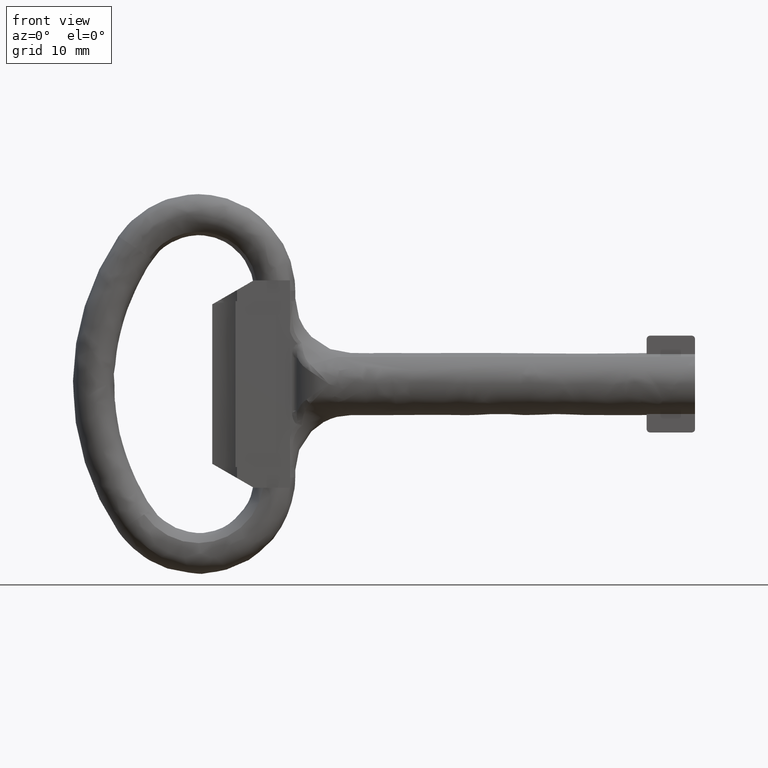
[diagram: clean part render]
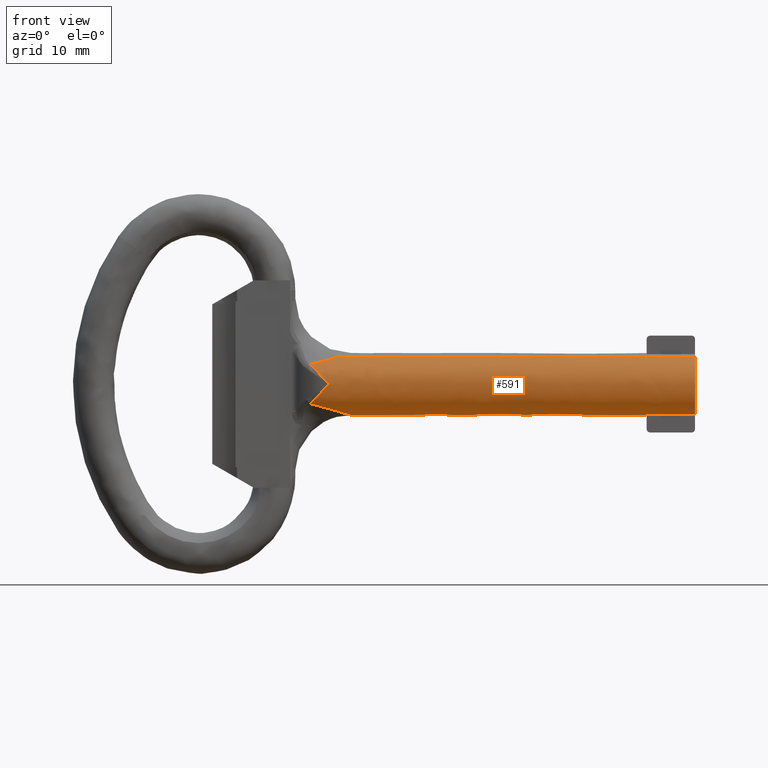
[diagram: same view with one face highlighted and labeled with its STEP entity id]
A machine part, front view. The second image highlights one B-rep face of the part: STEP entity #591.
In plain terms, the highlighted face is a freeform B-spline surface patch.
Its self-contained STEP definition (entity closure, byte-faithful):
#230=CARTESIAN_POINT('',(-57.048638486728692,-2.210718339266490,3.919530812540482));
#231=CARTESIAN_POINT('',(-57.048638486728684,-5.496579655738914,2.066218714732629));
#232=CARTESIAN_POINT('',(-57.048638486728677,-4.245221617824202,-1.492679061815200));
#233=CARTESIAN_POINT('',(-57.048638486728692,-2.752542556009002,-5.737900679639402));
#234=CARTESIAN_POINT('',(-57.048638486728677,1.492679061815200,-4.245221617824202));
#235=CARTESIAN_POINT('',(-57.048638486728692,5.737900679639402,-2.752542556009002));
#236=CARTESIAN_POINT('',(-57.048638486728677,4.245221617824202,1.492679061815200));
#237=CARTESIAN_POINT('',(1.426215962168222,-2.210718339266490,3.919530812540482));
#238=CARTESIAN_POINT('',(1.426215962168221,-5.496579655738914,2.066218714732629));
#239=CARTESIAN_POINT('',(1.426215962168222,-4.245221617824202,-1.492679061815200));
#240=CARTESIAN_POINT('',(1.426215962168222,-2.752542556009002,-5.737900679639402));
#241=CARTESIAN_POINT('',(1.426215962168222,1.492679061815200,-4.245221617824202));
#242=CARTESIAN_POINT('',(1.426215962168222,5.737900679639402,-2.752542556009002));
#243=CARTESIAN_POINT('',(1.426215962168222,4.245221617824202,1.492679061815200));
#251=(BOUNDED_SURFACE()B_SPLINE_SURFACE(2,1,((#230,#237),(#231,#238),(#232,#239),(#233,#240),(#234,#241),(#235,#242),(#236,#243)),.UNSPECIFIED.,.F.,.F.,.U.)B_SPLINE_SURFACE_WITH_KNOTS((3,2,2,3),(2,2),(0.0,6.561142401276319,14.016986039090320,21.472829676904318),(0.0,58.474854448896913),.UNSPECIFIED.)GEOMETRIC_REPRESENTATION_ITEM()RATIONAL_B_SPLINE_SURFACE(((0.938140952186599,0.938140952186599),(0.742253967444162,0.742253967444162),(1.0,1.0),(0.707106781186548,0.707106781186548),(1.0,1.0),(0.707106781186548,0.707106781186548),(1.0,1.0)))REPRESENTATION_ITEM('')SURFACE());
#252=CARTESIAN_POINT('',(-51.716841464869127,-2.210718864236529,3.919531743995806));
#253=VERTEX_POINT('',#252);
#254=CARTESIAN_POINT('',(-55.657208279735300,-3.492295393360170,2.837934152079430));
#255=VERTEX_POINT('',#254);
#256=CARTESIAN_POINT('',(-51.716841464869127,-2.210718864236529,3.919531743995806));
#257=CARTESIAN_POINT('',(-51.758727016348267,-2.233126748140558,3.906892245564237));
#258=CARTESIAN_POINT('',(-51.800836128852957,-2.255158331591422,3.894211164004134));
#259=CARTESIAN_POINT('',(-51.975353216815208,-2.344561612454913,3.841768329171790));
#260=CARTESIAN_POINT('',(-52.109706812485882,-2.408889124556252,3.801660298992484));
#261=CARTESIAN_POINT('',(-52.517428694294367,-2.592802140399997,3.680880763554606));
#262=CARTESIAN_POINT('',(-52.793234394122720,-2.702495054317139,3.600405755350944));
#263=CARTESIAN_POINT('',(-53.351056397471922,-2.902941730502905,3.440833016621393));
#264=CARTESIAN_POINT('',(-53.633094206719370,-2.993617517763209,3.361726073217614));
#265=CARTESIAN_POINT('',(-54.202563328610957,-3.159741922471765,3.206084902977868));
#266=CARTESIAN_POINT('',(-54.490002593715062,-3.235159892322479,3.129545223175142));
#267=CARTESIAN_POINT('',(-54.924947237735310,-3.338599005326614,3.017669952653719));
#268=CARTESIAN_POINT('',(-55.070562883010673,-3.371455277661563,2.980868816122473));
#269=CARTESIAN_POINT('',(-55.363050288333760,-3.434131619943636,2.908441207962686));
#270=CARTESIAN_POINT('',(-55.509992554076867,-3.463963423204693,2.872798755652453));
#271=CARTESIAN_POINT('',(-55.657208279735300,-3.492295393360170,2.837934152079430));
#272=B_SPLINE_CURVE_WITH_KNOTS('',3,(#256,#257,#258,#259,#260,#261,#262,#263,#264,#265,#266,#267,#268,#269,#270,#271),.UNSPECIFIED.,.F.,.U.,(4,2,2,2,2,2,2,4),(0.708746275433167,0.718750000000013,0.750000000000012,0.812500000000008,0.875000000000005,0.937500000000002,0.968750000000001,1.0),.UNSPECIFIED.);
#273=EDGE_CURVE('',#253,#255,#272,.T.);
#274=ORIENTED_EDGE('',*,*,#273,.T.);
#275=CARTESIAN_POINT('',(-52.969740176507209,-4.499859390598326,0.035536331655505));
#276=VERTEX_POINT('',#275);
#277=CARTESIAN_POINT('',(-55.657208279735300,-3.492295393360175,2.837934152079425));
#278=CARTESIAN_POINT('',(-55.448946027531562,-3.662967595665030,2.627908931639711));
#279=CARTESIAN_POINT('',(-55.236862567150837,-3.809117310918319,2.409720833053453));
#280=CARTESIAN_POINT('',(-54.805097962875173,-4.058838573289201,1.960091481938816));
#281=CARTESIAN_POINT('',(-54.585417449302660,-4.162349105469386,1.728620233700231));
#282=CARTESIAN_POINT('',(-54.249875506894227,-4.287396020765555,1.372608058653740));
#283=CARTESIAN_POINT('',(-54.137021150985667,-4.324016044815593,1.252460710253598));
#284=CARTESIAN_POINT('',(-53.909188982373109,-4.387144682888049,1.009323594274286));
#285=CARTESIAN_POINT('',(-53.794046495393431,-4.413662849262930,0.886152733599809));
#286=CARTESIAN_POINT('',(-53.563522850513053,-4.456122332180029,0.639265339961903));
#287=CARTESIAN_POINT('',(-53.447892871008911,-4.472145244477412,0.515230051841882));
#288=CARTESIAN_POINT('',(-53.273807892781932,-4.488397040336521,0.328901666644744));
#289=CARTESIAN_POINT('',(-53.215724846982653,-4.492515313672156,0.266726590343182));
#290=CARTESIAN_POINT('',(-53.128059207145718,-4.496745948957580,0.173876750731471));
#291=CARTESIAN_POINT('',(-53.098798524427167,-4.497831809737063,0.142940539537662));
#292=CARTESIAN_POINT('',(-53.054096510494752,-4.498972974349471,0.097318791721492));
#293=CARTESIAN_POINT('',(-53.039107438316300,-4.499272393186104,0.082171487459305));
#294=CARTESIAN_POINT('',(-53.015558802212780,-4.499597392183830,0.060600232091420));
#295=CARTESIAN_POINT('',(-53.007572968372472,-4.499685093102313,0.053570009099080));
#296=CARTESIAN_POINT('',(-52.994523080219111,-4.499782855496221,0.044285422456106));
#297=CARTESIAN_POINT('',(-52.990031864022512,-4.499809467026924,0.041436668584076));
#298=CARTESIAN_POINT('',(-52.980344881668032,-4.499847947713340,0.037022756630334));
#299=CARTESIAN_POINT('',(-52.975135808085433,-4.499859390598326,0.035536331655445));
#300=CARTESIAN_POINT('',(-52.969740176507209,-4.499859390598326,0.035536331655445));
#301=B_SPLINE_CURVE_WITH_KNOTS('',3,(#277,#278,#279,#280,#281,#282,#283,#284,#285,#286,#287,#288,#289,#290,#291,#292,#293,#294,#295,#296,#297,#298,#299,#300),.UNSPECIFIED.,.F.,.U.,(4,2,2,2,2,2,2,2,2,2,2,4),(0.0,0.249999999999999,0.499999999999998,0.625000000000000,0.750000000000001,0.875000000000002,0.937500000000003,0.968750000000002,0.984375000000001,0.992187500000000,0.996093750000000,1.0),.UNSPECIFIED.);
#302=EDGE_CURVE('',#255,#276,#301,.T.);
#303=ORIENTED_EDGE('',*,*,#302,.T.);
#304=CARTESIAN_POINT('',(-52.969740176507209,-4.499902697582460,0.027639591990323));
#305=VERTEX_POINT('',#304);
#306=CARTESIAN_POINT('',(-52.969740176507209,-4.499859390598326,0.035536331655505));
#307=CARTESIAN_POINT('',(-52.969740176507209,-4.499876135843758,0.032904101988636));
#308=CARTESIAN_POINT('',(-52.969740176507209,-4.499890571512546,0.030271854082563));
#309=CARTESIAN_POINT('',(-52.969740176507209,-4.499902697582460,0.027639591990323));
#310=B_SPLINE_CURVE_WITH_KNOTS('',3,(#306,#307,#308,#309),.UNSPECIFIED.,.F.,.U.,(4,4),(0.0,0.999981137345155),.UNSPECIFIED.);
#311=EDGE_CURVE('',#276,#305,#310,.T.);
#312=ORIENTED_EDGE('',*,*,#311,.T.);
#313=CARTESIAN_POINT('',(-52.969740176507209,-4.499902697582460,-0.027639591990435));
#314=VERTEX_POINT('',#313);
#315=CARTESIAN_POINT('',(-52.969740176507209,-4.499902697582460,-0.027639591990435));
#316=CARTESIAN_POINT('',(-52.969740176507209,-4.500015876041312,-0.009213429051398));
#317=CARTESIAN_POINT('',(-52.969740176507209,-4.500015876041312,0.009213429051286));
#318=CARTESIAN_POINT('',(-52.969740176507209,-4.499902697582460,0.027639591990323));
#319=B_SPLINE_CURVE_WITH_KNOTS('',3,(#315,#316,#317,#318),.UNSPECIFIED.,.F.,.U.,(4,4),(0.059038268630153,0.940961731368088),.UNSPECIFIED.);
#320=EDGE_CURVE('',#314,#305,#319,.T.);
#321=ORIENTED_EDGE('',*,*,#320,.F.);
#322=CARTESIAN_POINT('',(-52.969740176507209,-4.499859390598326,-0.035536331655503));
#323=VERTEX_POINT('',#322);
#324=CARTESIAN_POINT('',(-52.969740176507209,-4.499902697582460,-0.027639591990435));
#325=CARTESIAN_POINT('',(-52.969740176507209,-4.499890571512546,-0.030271854082638));
#326=CARTESIAN_POINT('',(-52.969740176507209,-4.499876135843758,-0.032904101988672));
#327=CARTESIAN_POINT('',(-52.969740176507209,-4.499859390598326,-0.035536331655503));
#328=B_SPLINE_CURVE_WITH_KNOTS('',3,(#324,#325,#326,#327),.UNSPECIFIED.,.F.,.U.,(4,4),(0.000018862669320,1.0),.UNSPECIFIED.);
#329=EDGE_CURVE('',#314,#323,#328,.T.);
#330=ORIENTED_EDGE('',*,*,#329,.T.);
#331=CARTESIAN_POINT('',(-55.657208279735300,-3.492295393360170,-2.837934152079430));
#332=VERTEX_POINT('',#331);
#333=CARTESIAN_POINT('',(-52.969740176507209,-4.499859390598326,-0.035536331655503));
#334=CARTESIAN_POINT('',(-52.975217920439462,-4.499859390598327,-0.035536331655503));
#335=CARTESIAN_POINT('',(-52.980475545880282,-4.499847682191984,-0.037058517334957));
#336=CARTESIAN_POINT('',(-52.990310710409169,-4.499808095022586,-0.041588515299582));
#337=CARTESIAN_POINT('',(-52.994849035280517,-4.499780732567035,-0.044500405880019));
#338=CARTESIAN_POINT('',(-53.007812775513329,-4.499682624637400,-0.053776283675690));
#339=CARTESIAN_POINT('',(-53.015773562120643,-4.499594810029605,-0.060790024187814));
#340=CARTESIAN_POINT('',(-53.039253978235102,-4.499269592965347,-0.082319849920506));
#341=CARTESIAN_POINT('',(-53.054245673771632,-4.498969671515407,-0.097469017377588));
#342=CARTESIAN_POINT('',(-53.098897606715283,-4.497828263476542,-0.143045700589851));
#343=CARTESIAN_POINT('',(-53.128118644576929,-4.496743265039148,-0.173939583248196));
#344=CARTESIAN_POINT('',(-53.215679579529613,-4.492517129073846,-0.266678885721690));
#345=CARTESIAN_POINT('',(-53.273714805298383,-4.488402612181345,-0.328802265607451));
#346=CARTESIAN_POINT('',(-53.447456899604227,-4.472192164873801,-0.514762953203363));
#347=CARTESIAN_POINT('',(-53.562745531293878,-4.456233081711924,-0.638432002979583));
#348=CARTESIAN_POINT('',(-53.792706079796773,-4.413941861957099,-0.884718000401807));
#349=CARTESIAN_POINT('',(-53.907458171293399,-4.387580223840728,-1.007474151788071));
#350=CARTESIAN_POINT('',(-54.135968108717357,-4.324351331675735,-1.251339261508897));
#351=CARTESIAN_POINT('',(-54.249108629047981,-4.287664520525589,-1.371793100916432));
#352=CARTESIAN_POINT('',(-54.585359971432098,-4.162404990860272,-1.728561830879815));
#353=CARTESIAN_POINT('',(-54.805315586179262,-4.058735040695155,-1.960320681216625));
#354=CARTESIAN_POINT('',(-55.237255439728692,-3.808867717202045,-2.410127385975357));
#355=CARTESIAN_POINT('',(-55.449239078491253,-3.662727438593874,-2.628204463315414));
#356=CARTESIAN_POINT('',(-55.657208279735300,-3.492295393360170,-2.837934152079430));
#357=B_SPLINE_CURVE_WITH_KNOTS('',3,(#333,#334,#335,#336,#337,#338,#339,#340,#341,#342,#343,#344,#345,#346,#347,#348,#349,#350,#351,#352,#353,#354,#355,#356),.UNSPECIFIED.,.F.,.U.,(4,2,2,2,2,2,2,2,2,2,2,4),(0.0,0.003906249999998,0.007812499999995,0.015624999999995,0.031249999999997,0.062499999999999,0.124999999999999,0.249999999999999,0.374999999999999,0.500000000000000,0.750000000000000,1.0),.UNSPECIFIED.);
#358=EDGE_CURVE('',#323,#332,#357,.T.);
#359=ORIENTED_EDGE('',*,*,#358,.T.);
#360=CARTESIAN_POINT('',(-55.657208279735300,3.492295393360180,-2.837934152079425));
#361=VERTEX_POINT('',#360);
#362=CARTESIAN_POINT('',(-55.657208279735293,-3.492295393360183,-2.837934152079415));
#363=CARTESIAN_POINT('',(-55.362394506905360,-3.435557911984783,-2.907753969672074));
#364=CARTESIAN_POINT('',(-55.069953520843683,-3.373085894110627,-2.980371514446779));
#365=CARTESIAN_POINT('',(-54.489827694286397,-3.235117220451995,-3.129590929036706));
#366=CARTESIAN_POINT('',(-54.202139844977417,-3.159635146268442,-3.206197008207995));
#367=CARTESIAN_POINT('',(-53.631849584816003,-2.993238079710238,-3.362070688006017));
#368=CARTESIAN_POINT('',(-53.349239450661557,-2.902355331407946,-3.441343591111985));
#369=CARTESIAN_POINT('',(-52.929736244881802,-2.751512163383088,-3.561363065559648));
#370=CARTESIAN_POINT('',(-52.790641412447187,-2.698796935908336,-3.601555231721463));
#371=CARTESIAN_POINT('',(-52.514105099714719,-2.587741129356032,-3.682159805854119));
#372=CARTESIAN_POINT('',(-52.376692250651303,-2.529400309062257,-3.722565295756819));
#373=CARTESIAN_POINT('',(-51.970058756952589,-2.345733110927349,-3.843042712858803));
#374=CARTESIAN_POINT('',(-51.705455261871357,-2.211682060606504,-3.922661552708332));
#375=CARTESIAN_POINT('',(-51.322279588989403,-1.985331088368686,-4.039264944597047));
#376=CARTESIAN_POINT('',(-51.196866964030569,-1.905622764471864,-4.077655400786520));
#377=CARTESIAN_POINT('',(-50.951918933401863,-1.735273498558904,-4.153010663751781));
#378=CARTESIAN_POINT('',(-50.832322025013411,-1.644639440840984,-4.189994840918191));
#379=CARTESIAN_POINT('',(-50.601257259465093,-1.448568474299825,-4.261753750811452));
#380=CARTESIAN_POINT('',(-50.491551984449274,-1.344649542316107,-4.295981169754184));
#381=CARTESIAN_POINT('',(-50.338810444473147,-1.176788958224166,-4.343794415364593));
#382=CARTESIAN_POINT('',(-50.289881566387187,-1.118822527351545,-4.359139257525513));
#383=CARTESIAN_POINT('',(-50.196811611479269,-0.998026482253136,-4.388371230300693));
#384=CARTESIAN_POINT('',(-50.152504749509767,-0.934912961409143,-4.402310684673050));
#385=CARTESIAN_POINT('',(-50.071061225791773,-0.804687025608930,-4.427965718093802));
#386=CARTESIAN_POINT('',(-50.033821944138218,-0.737498405221308,-4.439713339617255));
#387=CARTESIAN_POINT('',(-49.967611860338067,-0.598188679220362,-4.460619770808980));
#388=CARTESIAN_POINT('',(-49.938575911796200,-0.525687989072552,-4.469799228290259));
#389=CARTESIAN_POINT('',(-49.891647969527362,-0.378711174083498,-4.484643893298959));
#390=CARTESIAN_POINT('',(-49.873541410326922,-0.303890430376356,-4.490376719122000));
#391=CARTESIAN_POINT('',(-49.855241321054983,-0.189455270299333,-4.496172021108697));
#392=CARTESIAN_POINT('',(-49.850620072855278,-0.150942343009073,-4.497635829638924));
#393=CARTESIAN_POINT('',(-49.844502904817439,-0.073138943886578,-4.499573573334707));
#394=CARTESIAN_POINT('',(-49.843031789994143,-0.033862453203920,-4.500039647029715));
#395=CARTESIAN_POINT('',(-49.843705056768442,0.160181532331293,-4.499826356157040));
#396=CARTESIAN_POINT('',(-49.869445799601984,0.311424237450731,-4.491666390439683));
#397=CARTESIAN_POINT('',(-49.929326995278132,0.496090485317454,-4.472725121465861));
#398=CARTESIAN_POINT('',(-49.942666203832353,0.532679328686994,-4.468507165930583));
#399=CARTESIAN_POINT('',(-49.971560942412708,0.604382714773182,-4.459374966659205));
#400=CARTESIAN_POINT('',(-49.987157224481848,0.639627015598241,-4.454447832040690));
#401=CARTESIAN_POINT('',(-50.037108313119397,0.743688697499965,-4.438676362719053));
#402=CARTESIAN_POINT('',(-50.074668787187363,0.810926102499821,-4.426828261489376));
#403=CARTESIAN_POINT('',(-50.197838263040872,1.006387137976656,-4.388032729161348));
#404=CARTESIAN_POINT('',(-50.291844417922967,1.125628736316380,-4.358493283153186));
#405=CARTESIAN_POINT('',(-50.444987771067431,1.293234431059780,-4.310558974038893));
#406=CARTESIAN_POINT('',(-50.498101730118393,1.347186004827269,-4.293962755562415));
#407=CARTESIAN_POINT('',(-50.607882865579327,1.451798729133234,-4.259730828097800));
#408=CARTESIAN_POINT('',(-50.664468256070023,1.502360809485767,-4.242120882433306));
#409=CARTESIAN_POINT('',(-50.836856862235862,1.648157010677760,-4.188591255100453));
#410=CARTESIAN_POINT('',(-50.955924753720950,1.738207832238208,-4.151774568395118));
#411=CARTESIAN_POINT('',(-51.200204328229880,1.907790718374983,-4.076632569868051));
#412=CARTESIAN_POINT('',(-51.325436409917472,1.987287088242104,-4.038300661092769));
#413=CARTESIAN_POINT('',(-51.580808504570577,2.137956814252630,-3.960596275924473));
#414=CARTESIAN_POINT('',(-51.710957259735608,2.209114851681740,-3.921220928729157));
#415=CARTESIAN_POINT('',(-51.975353216988417,2.344562101006551,-3.841769195871629));
#416=CARTESIAN_POINT('',(-52.109706812652448,2.408889594349035,-3.801661132413766));
#417=CARTESIAN_POINT('',(-52.517428694440902,2.592802553709068,-3.680881496772708));
#418=CARTESIAN_POINT('',(-52.793234394255911,2.702495429995438,-3.600406421811340));
#419=CARTESIAN_POINT('',(-53.351056397578432,2.902942030956577,-3.440833549631874));
#420=CARTESIAN_POINT('',(-53.633094206812594,2.993617780623181,-3.361726539536149));
#421=CARTESIAN_POINT('',(-54.202563328677499,3.159742110174246,-3.206085235965590));
#422=CARTESIAN_POINT('',(-54.490002593768303,3.235160042461233,-3.129545489524104));
#423=CARTESIAN_POINT('',(-54.924947237768599,3.338599099139023,-3.017670119078674));
#424=CARTESIAN_POINT('',(-55.070562883037290,3.371455352701749,-2.980868949245144));
#425=CARTESIAN_POINT('',(-55.363050288347047,3.434131657445447,-2.908441274491564));
#426=CARTESIAN_POINT('',(-55.509992554083503,3.463963441931469,-2.872798788874070));
#427=CARTESIAN_POINT('',(-55.657208279735300,3.492295393360185,-2.837934152079412));
#428=B_SPLINE_CURVE_WITH_KNOTS('',3,(#362,#363,#364,#365,#366,#367,#368,#369,#370,#371,#372,#373,#374,#375,#376,#377,#378,#379,#380,#381,#382,#383,#384,#385,#386,#387,#388,#389,#390,#391,#392,#393,#394,#395,#396,#397,#398,#399,#400,#401,#402,#403,#404,#405,#406,#407,#408,#409,#410,#411,#412,#413,#414,#415,#416,#417,#418,#419,#420,#421,#422,#423,#424,#425,#426,#427),.UNSPECIFIED.,.F.,.U.,(4,2,2,2,2,2,2,2,2,2,2,2,2,2,2,2,2,2,2,2,2,2,2,2,2,2,2,2,2,2,2,2,4),(0.0,0.062500000000002,0.125000000000004,0.187500000000006,0.218750000000007,0.250000000000008,0.312500000000010,0.343750000000011,0.375000000000011,0.406250000000012,0.421875000000011,0.437500000000011,0.453125000000011,0.468750000000011,0.484375000000010,0.492187500000010,0.500000000000010,0.531250000000009,0.539062500000009,0.546875000000009,0.562500000000009,0.593750000000010,0.609375000000010,0.625000000000010,0.656250000000009,0.687500000000009,0.718750000000008,0.750000000000007,0.812500000000006,0.875000000000004,0.937500000000003,0.968750000000002,1.0),.UNSPECIFIED.);
#429=EDGE_CURVE('',#332,#361,#428,.T.);
#430=ORIENTED_EDGE('',*,*,#429,.T.);
#431=CARTESIAN_POINT('',(-52.969740176507209,4.499859390598346,-0.035536331653363));
#432=VERTEX_POINT('',#431);
#433=CARTESIAN_POINT('',(-55.657208279735300,3.492295393360180,-2.837934152079420));
#434=CARTESIAN_POINT('',(-55.448946027531470,3.662967595665096,-2.627908931639630));
#435=CARTESIAN_POINT('',(-55.236862567150709,3.809117310918431,-2.409720833053282));
#436=CARTESIAN_POINT('',(-54.805097962874861,4.058838573289372,-1.960091481938473));
#437=CARTESIAN_POINT('',(-54.585417449302298,4.162349105469572,-1.728620233699797));
#438=CARTESIAN_POINT('',(-54.249875506893723,4.287396020765740,-1.372608058653161));
#439=CARTESIAN_POINT('',(-54.137021150985120,4.324016044815776,-1.252460710252970));
#440=CARTESIAN_POINT('',(-53.909188982372477,4.387144682888217,-1.009323594273555));
#441=CARTESIAN_POINT('',(-53.794046495392777,4.413662849263089,-0.886152733599024));
#442=CARTESIAN_POINT('',(-53.563522850512292,4.456122332180153,-0.639265339961045));
#443=CARTESIAN_POINT('',(-53.447892871008222,4.472145244477512,-0.515230051841031));
#444=CARTESIAN_POINT('',(-53.273807892781207,4.488397040336593,-0.328901666643782));
#445=CARTESIAN_POINT('',(-53.215724846981921,4.492515313672217,-0.266726590342185));
#446=CARTESIAN_POINT('',(-53.128059207145000,4.496745948957623,-0.173876750730380));
#447=CARTESIAN_POINT('',(-53.098798524426428,4.497831809737098,-0.142940539536549));
#448=CARTESIAN_POINT('',(-53.054096510494112,4.498972974349500,-0.097318791720276));
#449=CARTESIAN_POINT('',(-53.039107438315732,4.499272393186129,-0.082171487458049));
#450=CARTESIAN_POINT('',(-53.015558802212283,4.499597392183847,-0.060600232090023));
#451=CARTESIAN_POINT('',(-53.007572968372010,4.499685093102331,-0.053570009097643));
#452=CARTESIAN_POINT('',(-52.994523080218777,4.499782855496239,-0.044285422454568));
#453=CARTESIAN_POINT('',(-52.990031864022143,4.499809467026938,-0.041436668582623));
#454=CARTESIAN_POINT('',(-52.980344881667733,4.499847947713354,-0.037022756628838));
#455=CARTESIAN_POINT('',(-52.975135808085419,4.499859390598340,-0.035536331653431));
#456=CARTESIAN_POINT('',(-52.969740176507209,4.499859390598340,-0.035536331653431));
#457=B_SPLINE_CURVE_WITH_KNOTS('',3,(#433,#434,#435,#436,#437,#438,#439,#440,#441,#442,#443,#444,#445,#446,#447,#448,#449,#450,#451,#452,#453,#454,#455,#456),.UNSPECIFIED.,.F.,.U.,(4,2,2,2,2,2,2,2,2,2,2,4),(0.0,0.250000000000003,0.500000000000005,0.625000000000005,0.750000000000005,0.875000000000004,0.937500000000004,0.968750000000004,0.984375000000002,0.992187500000001,0.996093750000001,1.0),.UNSPECIFIED.);
#458=EDGE_CURVE('',#361,#432,#457,.T.);
#459=ORIENTED_EDGE('',*,*,#458,.T.);
#460=CARTESIAN_POINT('',(-52.969740176507209,4.499902697582471,-0.027639591988769));
#461=VERTEX_POINT('',#460);
#462=CARTESIAN_POINT('',(-52.969740176507209,4.499859390598346,-0.035536331653363));
#463=CARTESIAN_POINT('',(-52.969740176507209,4.499876135843773,-0.032904101986690));
#464=CARTESIAN_POINT('',(-52.969740176507209,4.499890571512560,-0.030271854080813));
#465=CARTESIAN_POINT('',(-52.969740176507209,4.499902697582471,-0.027639591988769));
#466=B_SPLINE_CURVE_WITH_KNOTS('',3,(#462,#463,#464,#465),.UNSPECIFIED.,.F.,.U.,(4,4),(0.0,0.999981137329025),.UNSPECIFIED.);
#467=EDGE_CURVE('',#432,#461,#466,.T.);
#468=ORIENTED_EDGE('',*,*,#467,.T.);
#469=CARTESIAN_POINT('',(-52.969740176507209,4.499902697582471,0.027639591988769));
#470=VERTEX_POINT('',#469);
#471=CARTESIAN_POINT('',(-52.969740176507209,4.499902697582471,0.027639591988769));
#472=CARTESIAN_POINT('',(-52.969740176507209,4.500015876041310,0.009213429050806));
#473=CARTESIAN_POINT('',(-52.969740176507209,4.500015876041309,-0.009213429050805));
#474=CARTESIAN_POINT('',(-52.969740176507209,4.499902697582471,-0.027639591988769));
#475=B_SPLINE_CURVE_WITH_KNOTS('',3,(#471,#472,#473,#474),.UNSPECIFIED.,.F.,.U.,(4,4),(0.059038268629649,0.940961731370099),.UNSPECIFIED.);
#476=EDGE_CURVE('',#470,#461,#475,.T.);
#477=ORIENTED_EDGE('',*,*,#476,.F.);
#478=CARTESIAN_POINT('',(-52.969740176507209,4.499859390598346,0.035536331653360));
#479=VERTEX_POINT('',#478);
#480=CARTESIAN_POINT('',(-52.969740176507209,4.499902697582471,0.027639591988769));
#481=CARTESIAN_POINT('',(-52.969740176507209,4.499890571512559,0.030271854080813));
#482=CARTESIAN_POINT('',(-52.969740176507209,4.499876135843774,0.032904101986689));
#483=CARTESIAN_POINT('',(-52.969740176507209,4.499859390598346,0.035536331653360));
#484=B_SPLINE_CURVE_WITH_KNOTS('',3,(#480,#481,#482,#483),.UNSPECIFIED.,.F.,.U.,(4,4),(0.000018862670064,1.0),.UNSPECIFIED.);
#485=EDGE_CURVE('',#470,#479,#484,.T.);
#486=ORIENTED_EDGE('',*,*,#485,.T.);
#487=CARTESIAN_POINT('',(-54.363039835407292,4.245221785163688,1.492678590652314));
#488=VERTEX_POINT('',#487);
#489=CARTESIAN_POINT('',(-52.969740176507209,4.499859390598346,0.035536331653360));
#490=CARTESIAN_POINT('',(-52.975217918041217,4.499859389888258,0.035536333664093));
#491=CARTESIAN_POINT('',(-52.980475540482090,4.499847680593716,0.037058521859016));
#492=CARTESIAN_POINT('',(-52.990310698627660,4.499808091534299,0.041588525175716));
#493=CARTESIAN_POINT('',(-52.994849020176353,4.499780728095022,0.044500418541722));
#494=CARTESIAN_POINT('',(-53.007812750478251,4.499682617225017,0.053776304663634));
#495=CARTESIAN_POINT('',(-53.015773530381743,4.499594800632313,0.060790050796426));
#496=CARTESIAN_POINT('',(-53.039253926332009,4.499269577597736,0.082319893435265));
#497=CARTESIAN_POINT('',(-53.054245608344473,4.498969652143509,0.097469072231226));
#498=CARTESIAN_POINT('',(-53.098897500778932,4.497828232110439,0.143045789407238));
#499=CARTESIAN_POINT('',(-53.128118511614758,4.496743225671064,0.173939694724597));
#500=CARTESIAN_POINT('',(-53.215679365430631,4.492517065682240,0.266679065224914));
#501=CARTESIAN_POINT('',(-53.273714537016630,4.488402532746949,0.328802490538578));
#502=CARTESIAN_POINT('',(-53.447456468811467,4.472192037322063,0.514763314387011));
#503=CARTESIAN_POINT('',(-53.562744992124053,4.456232922071122,0.638432455029019));
#504=CARTESIAN_POINT('',(-53.792705323794877,4.413941638114880,0.884718634248753));
#505=CARTESIAN_POINT('',(-53.907457306736767,4.387579967855778,1.007474876653139));
#506=CARTESIAN_POINT('',(-54.135967027393811,4.324351011510312,1.251340168110907));
#507=CARTESIAN_POINT('',(-54.249107440100261,4.287664168494763,1.371794097750620));
#508=CARTESIAN_POINT('',(-54.361807386320393,4.245681387655625,1.491370974450777));
#509=CARTESIAN_POINT('',(-54.362423626778202,4.245451662618208,1.492024805561863));
#510=CARTESIAN_POINT('',(-54.363039835407292,4.245221785163688,1.492678590652314));
#511=B_SPLINE_CURVE_WITH_KNOTS('',3,(#489,#490,#491,#492,#493,#494,#495,#496,#497,#498,#499,#500,#501,#502,#503,#504,#505,#506,#507,#508,#509,#510),.UNSPECIFIED.,.F.,.U.,(4,2,2,2,2,2,2,2,2,2,4),(0.0,0.003906250000003,0.007812500000005,0.015625000000007,0.031250000000009,0.062500000000010,0.125000000000010,0.250000000000008,0.375000000000007,0.500000000000006,0.500687290429567),.UNSPECIFIED.);
#512=EDGE_CURVE('',#479,#488,#511,.T.);
#513=ORIENTED_EDGE('',*,*,#512,.T.);
#514=CARTESIAN_POINT('',(1.554312E-015,4.245221617818697,1.492679061830861));
#515=VERTEX_POINT('',#514);
#516=CARTESIAN_POINT('',(-54.363039835407292,4.245221785163688,1.492678590652314));
#517=CARTESIAN_POINT('',(1.554312E-015,4.245221617818697,1.492679061830861));
#518=QUASI_UNIFORM_CURVE('',1,(#516,#517),.UNSPECIFIED.,.F.,.U.);
#519=EDGE_CURVE('',#488,#515,#518,.T.);
#520=ORIENTED_EDGE('',*,*,#519,.T.);
#521=CARTESIAN_POINT('',(0.0,1.249999552969186,-4.322903941056326));
#522=VERTEX_POINT('',#521);
#523=CARTESIAN_POINT('',(0.0,1.249999552969185,-4.322903941056323));
#524=CARTESIAN_POINT('',(0.0,4.499999707335928,-3.383142429928338));
#525=CARTESIAN_POINT('',(0.0,4.499999707335929,0.0));
#526=CARTESIAN_POINT('',(0.0,4.499999707335929,0.768082944011856));
#527=CARTESIAN_POINT('',(1.554312E-015,4.245221617818697,1.492679061830861));
#535=(BOUNDED_CURVE()B_SPLINE_CURVE(2,(#523,#524,#525,#526,#527),.UNSPECIFIED.,.F.,.U.)B_SPLINE_CURVE_WITH_KNOTS((3,2,3),(0.0,0.500000000000000,0.634359457068248),.UNSPECIFIED.)CURVE()GEOMETRIC_REPRESENTATION_ITEM()RATIONAL_B_SPLINE_CURVE((1.0,0.799305228465095,1.0,0.946069518920268,0.921123318469745))REPRESENTATION_ITEM(''));
#536=EDGE_CURVE('',#522,#515,#535,.T.);
#537=ORIENTED_EDGE('',*,*,#536,.F.);
#538=CARTESIAN_POINT('',(-7.000000332482160,1.249999552969186,-4.322903941056326));
#539=VERTEX_POINT('',#538);
#540=CARTESIAN_POINT('',(-7.000000332482160,1.249999552969186,-4.322903941056326));
#541=CARTESIAN_POINT('',(0.0,1.249999552969186,-4.322903941056326));
#542=QUASI_UNIFORM_CURVE('',1,(#540,#541),.UNSPECIFIED.,.F.,.U.);
#543=EDGE_CURVE('',#539,#522,#542,.T.);
#544=ORIENTED_EDGE('',*,*,#543,.F.);
#545=CARTESIAN_POINT('',(-7.000000332482160,-1.250000565774414,-4.322903648196095));
#546=VERTEX_POINT('',#545);
#547=CARTESIAN_POINT('',(-7.000000332482160,1.249999552969187,-4.322903941056323));
#548=CARTESIAN_POINT('',(-7.000000332482159,-0.000000548743979,-4.684350688348859));
#549=CARTESIAN_POINT('',(-7.000000332482160,-1.250000565774412,-4.322903648196094));
#557=(BOUNDED_CURVE()B_SPLINE_CURVE(2,(#547,#548,#549),.UNSPECIFIED.,.F.,.U.)CURVE()GEOMETRIC_REPRESENTATION_ITEM()QUASI_UNIFORM_CURVE()RATIONAL_B_SPLINE_CURVE((1.0,0.960645350171693,1.0))REPRESENTATION_ITEM(''));
#558=EDGE_CURVE('',#539,#546,#557,.T.);
#559=ORIENTED_EDGE('',*,*,#558,.T.);
#560=CARTESIAN_POINT('',(0.0,-1.250000565774414,-4.322903648196095));
#561=VERTEX_POINT('',#560);
#562=CARTESIAN_POINT('',(0.0,-1.250000565774414,-4.322903648196095));
#563=CARTESIAN_POINT('',(-7.000000332482160,-1.250000565774414,-4.322903648196095));
#564=QUASI_UNIFORM_CURVE('',1,(#562,#563),.UNSPECIFIED.,.F.,.U.);
#565=EDGE_CURVE('',#561,#546,#564,.T.);
#566=ORIENTED_EDGE('',*,*,#565,.F.);
#567=CARTESIAN_POINT('',(1.538457E-015,-2.210718339294830,3.919530812524498));
#568=VERTEX_POINT('',#567);
#569=CARTESIAN_POINT('',(1.538457E-015,-2.210718339294830,3.919530812524499));
#570=CARTESIAN_POINT('',(0.0,-4.499999707335929,2.628315984451681));
#571=CARTESIAN_POINT('',(0.0,-4.499999707335929,0.0));
#572=CARTESIAN_POINT('',(0.0,-4.499999707335929,-3.383141604826588));
#573=CARTESIAN_POINT('',(0.0,-1.250000565774414,-4.322903648196093));
#581=(BOUNDED_CURVE()B_SPLINE_CURVE(2,(#569,#570,#571,#572,#573),.UNSPECIFIED.,.F.,.U.)B_SPLINE_CURVE_WITH_KNOTS((3,2,3),(0.093347937670654,0.500000000000000,1.0),.UNSPECIFIED.)CURVE()GEOMETRIC_REPRESENTATION_ITEM()RATIONAL_B_SPLINE_CURVE((0.939052822238951,0.836774171765636,1.0,0.799305298859928,1.0))REPRESENTATION_ITEM(''));
#582=EDGE_CURVE('',#568,#561,#581,.T.);
#583=ORIENTED_EDGE('',*,*,#582,.F.);
#584=CARTESIAN_POINT('',(-51.716841464869127,-2.210718864236529,3.919531743995806));
#585=CARTESIAN_POINT('',(1.538457E-015,-2.210718339294830,3.919530812524498));
#586=QUASI_UNIFORM_CURVE('',1,(#584,#585),.UNSPECIFIED.,.F.,.U.);
#587=EDGE_CURVE('',#253,#568,#586,.T.);
#588=ORIENTED_EDGE('',*,*,#587,.F.);
#589=EDGE_LOOP('',(#274,#303,#312,#321,#330,#359,#430,#459,#468,#477,#486,#513,#520,#537,#544,#559,#566,#583,#588));
#590=FACE_OUTER_BOUND('',#589,.T.);
#591=ADVANCED_FACE('',(#590),#251,.T.);